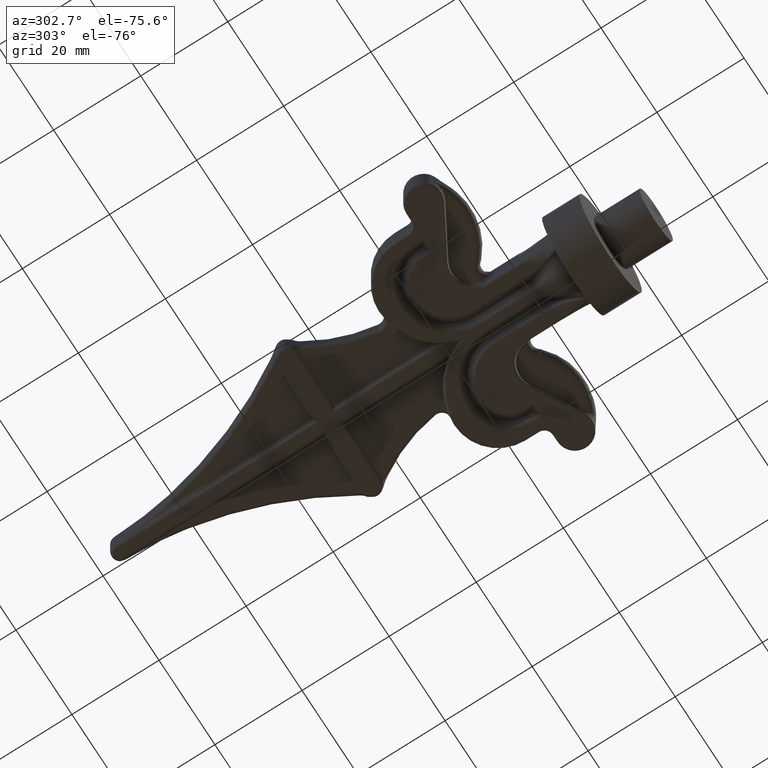
[diagram: clean part render]
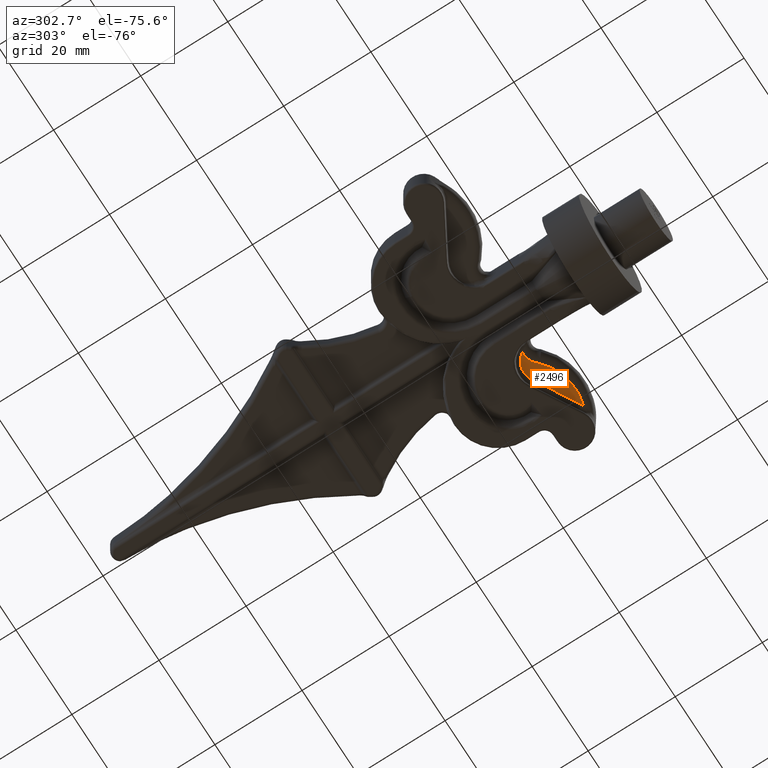
[diagram: same view with one face highlighted and labeled with its STEP entity id]
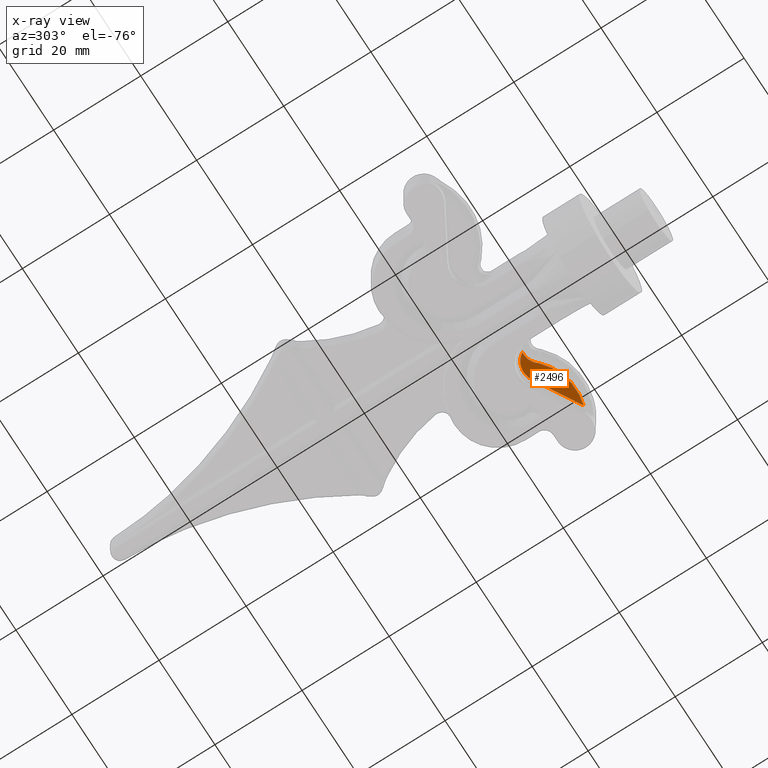
[diagram: x-ray of the same camera — body ghosted, the highlighted face saturated]
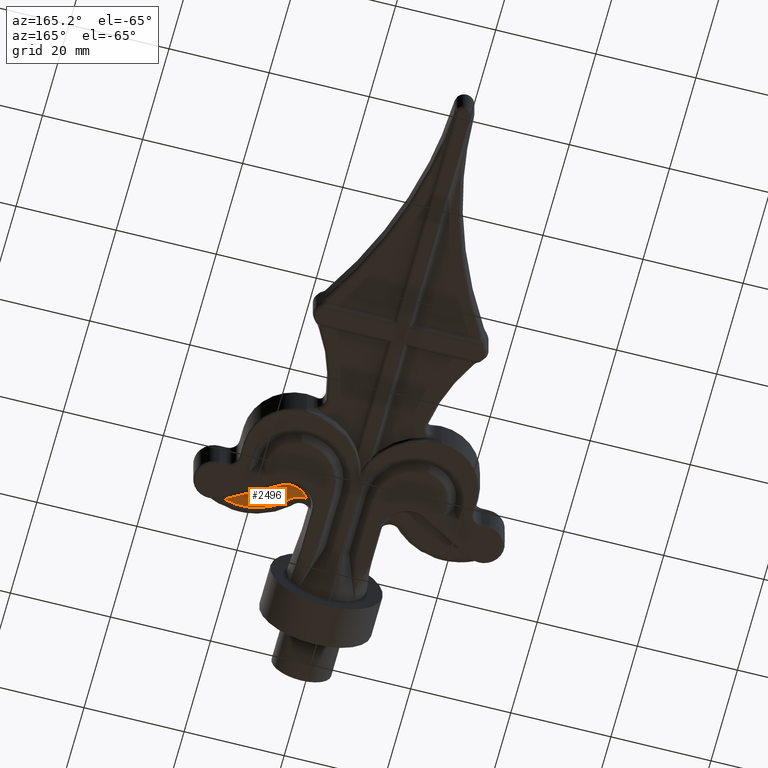
[diagram: same view with one face highlighted and labeled with its STEP entity id]
A machine part, auxiliary view. The second image highlights one B-rep face of the part: STEP entity #2496.
The next image is the same camera in x-ray: the body ghosted, the highlighted face saturated — about 0% of this face is hidden behind the body in this view.
A second angle (auxiliary view) of the same face is appended — the face is thin or edge-on in the first view.
In plain terms, the highlighted planar face has unit normal (-0, 0, -1).
Its self-contained STEP definition (entity closure, byte-faithful):
#483 = FACE_OUTER_BOUND ( 'NONE', #636, .T. ) ;
#586 = VECTOR ( 'NONE', #2785, 1000.000000000000000 ) ;
#636 = EDGE_LOOP ( 'NONE', ( #2279, #5045, #12396, #2826 ) ) ;
#2279 = ORIENTED_EDGE ( 'NONE', *, *, #17876, .T. ) ;
#2496 = ADVANCED_FACE ( 'NONE', ( #483 ), #17849, .T. ) ;
#2625 = VERTEX_POINT ( 'NONE', #6511 ) ;
#2785 = DIRECTION ( 'NONE',  ( 0.8670228701710057662, -0.4982683439678173842, 0.000000000000000000 ) ) ;
#2826 = ORIENTED_EDGE ( 'NONE', *, *, #7557, .T. ) ;
#2883 = CARTESIAN_POINT ( 'NONE',  ( -15.50000000000000711, 48.10379244903953122, -2.500000000000000000 ) ) ;
#3947 = DIRECTION ( 'NONE',  ( -0.000000000000000000, -0.000000000000000000, -1.000000000000000000 ) ) ;
#5045 = ORIENTED_EDGE ( 'NONE', *, *, #13596, .T. ) ;
#5494 = CARTESIAN_POINT ( 'NONE',  ( 14.11128624230083517, 10.65672104082276306, -2.500000000000000000 ) ) ;
#6180 = DIRECTION ( 'NONE',  ( -0.000000000000000000, -0.000000000000000000, -1.000000000000000000 ) ) ;
#6263 = DIRECTION ( 'NONE',  ( -1.000000000000000000, 0.000000000000000000, 0.000000000000000000 ) ) ;
#6511 = CARTESIAN_POINT ( 'NONE',  ( 23.90922472080192307, 5.025955408287142490, -2.500000000000000000 ) ) ;
#6910 = LINE ( 'NONE', #10309, #586 ) ;
#6928 = VERTEX_POINT ( 'NONE', #5494 ) ;
#7449 = DIRECTION ( 'NONE',  ( -1.000000000000000000, 0.000000000000000000, 0.000000000000000000 ) ) ;
#7557 = EDGE_CURVE ( 'NONE', #2625, #10857, #9370, .T. ) ;
#7626 = DIRECTION ( 'NONE',  ( -1.000000000000000000, 0.000000000000000000, 0.000000000000000000 ) ) ;
#8353 = AXIS2_PLACEMENT_3D ( 'NONE', #10099, #3947, #13066 ) ;
#8515 = AXIS2_PLACEMENT_3D ( 'NONE', #18315, #15291, #6263 ) ;
#8784 = CIRCLE ( 'NONE', #8353, 4.078899662337192034 ) ;
#9370 = CIRCLE ( 'NONE', #13178, 12.01119281894396629 ) ;
#10099 = CARTESIAN_POINT ( 'NONE',  ( 12.07889966233719292, 7.120221748443618104, -2.500000000000000000 ) ) ;
#10309 = CARTESIAN_POINT ( 'NONE',  ( 24.50865828016094383, 4.681467647679807165, -2.500000000000000000 ) ) ;
#10857 = VERTEX_POINT ( 'NONE', #15090 ) ;
#10988 = AXIS2_PLACEMENT_3D ( 'NONE', #2883, #17916, #7449 ) ;
#12396 = ORIENTED_EDGE ( 'NONE', *, *, #12864, .T. ) ;
#12864 = EDGE_CURVE ( 'NONE', #6928, #2625, #6910, .T. ) ;
#13066 = DIRECTION ( 'NONE',  ( -1.000000000000000000, 0.000000000000000000, 0.000000000000000000 ) ) ;
#13178 = AXIS2_PLACEMENT_3D ( 'NONE', #18038, #6180, #7626 ) ;
#13596 = EDGE_CURVE ( 'NONE', #18290, #6928, #8784, .T. ) ;
#13736 = CIRCLE ( 'NONE', #8515, 4.000000000000000000 ) ;
#15073 = CARTESIAN_POINT ( 'NONE',  ( 8.605231763915362819, 9.258224037237560822, -2.500000000000000000 ) ) ;
#15090 = CARTESIAN_POINT ( 'NONE',  ( 12.21896768102274500, 7.652251279766446146, -2.500000000000000000 ) ) ;
#15291 = DIRECTION ( 'NONE',  ( 0.000000000000000000, 0.000000000000000000, 1.000000000000000000 ) ) ;
#17849 = PLANE ( 'NONE',  #10988 ) ;
#17876 = EDGE_CURVE ( 'NONE', #10857, #18290, #13736, .T. ) ;
#17916 = DIRECTION ( 'NONE',  ( -0.000000000000000000, 0.000000000000000000, -1.000000000000000000 ) ) ;
#18038 = CARTESIAN_POINT ( 'NONE',  ( 20.34601364202141127, 16.49645146303154419, -2.500000000000000000 ) ) ;
#18290 = VERTEX_POINT ( 'NONE', #15073 ) ;
#18315 = CARTESIAN_POINT ( 'NONE',  ( 9.000000000000000000, 5.277751949685806743, -2.500000000000000000 ) ) ;